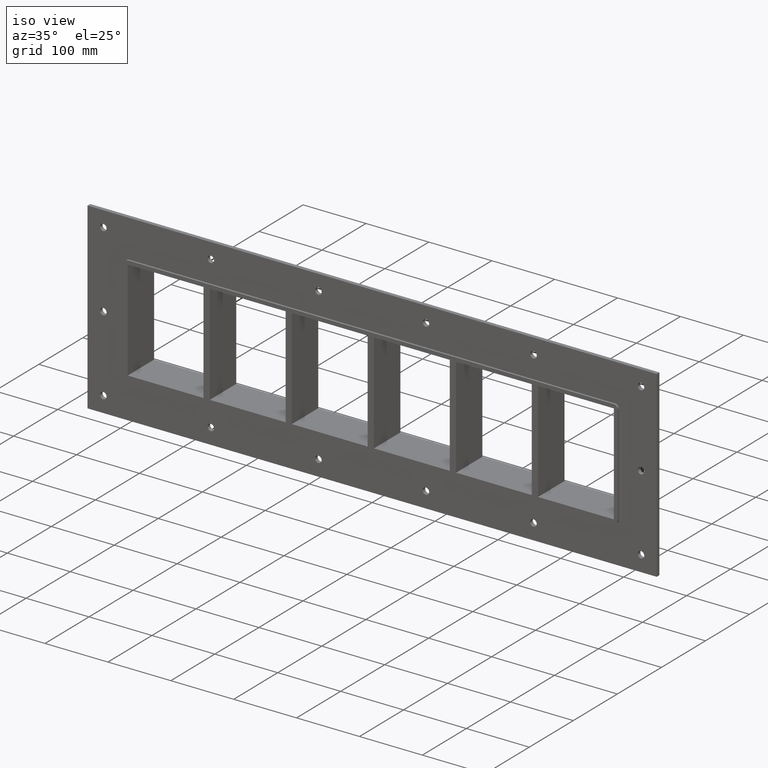
[diagram: clean part render]
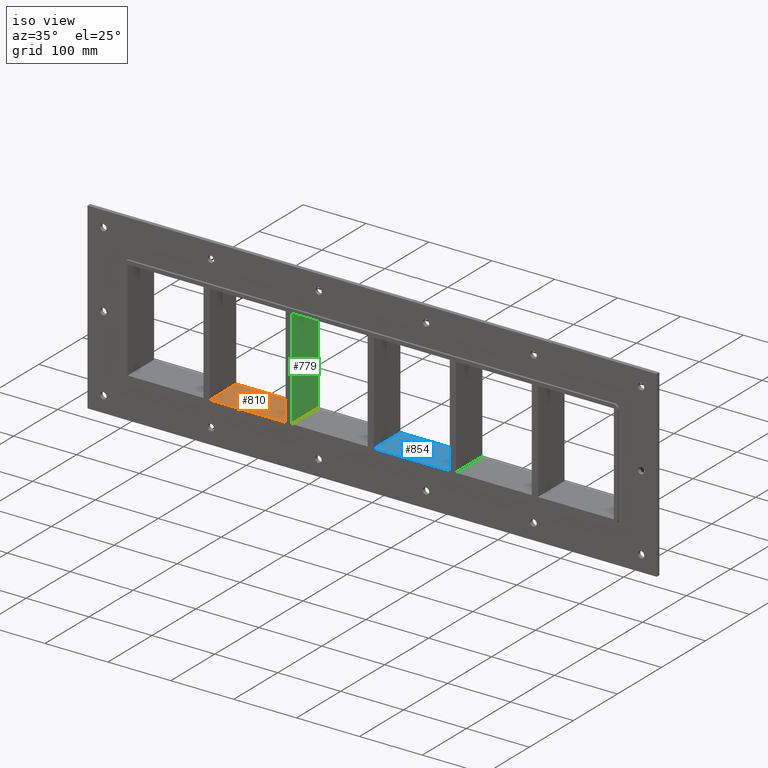
[diagram: same view with three faces highlighted in distinct colors, each labeled with its STEP entity id]
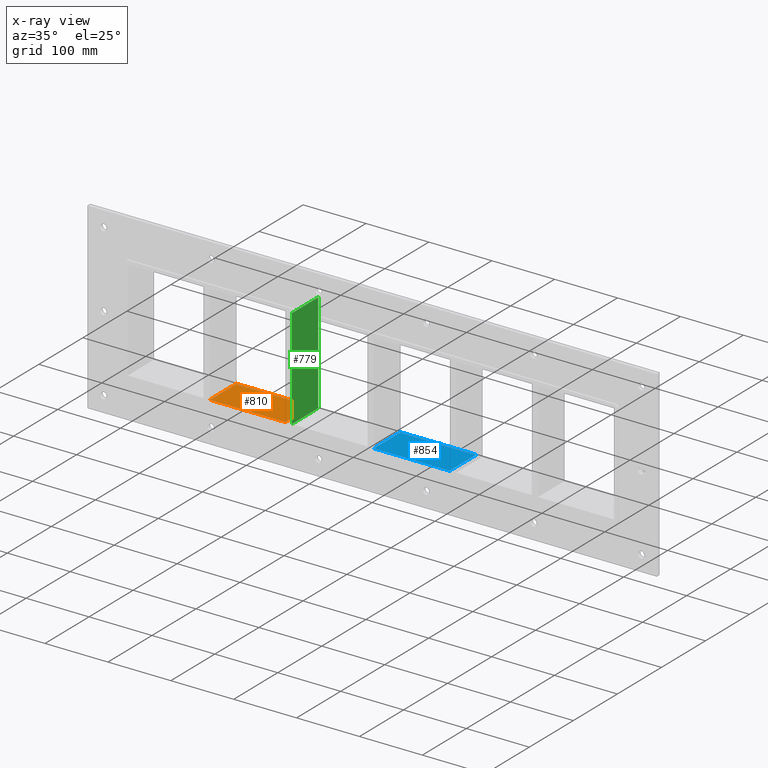
[diagram: x-ray of the same camera — body ghosted, the three highlighted faces saturated]
A machine part, iso view with three faces highlighted in distinct colors.
The next image is the same camera in x-ray (body ghosted, the three faces saturated) — at least one of them is partly hidden behind the body in this view.
Their STEP definitions:

[orange] entity #810 — the highlighted planar face has unit normal (0, 0, -1).
#705=CARTESIAN_POINT('',(-135.50000000000193,-3.0,-79.750000000000014));
#706=VERTEX_POINT('',#705);
#723=CARTESIAN_POINT('',(-135.50000000000193,57.0,-79.750000000000014));
#724=VERTEX_POINT('',#723);
#731=CARTESIAN_POINT('',(-135.50000000000193,-3.0,-79.750000000000014));
#732=DIRECTION('',(0.0,1.0,0.0));
#733=VECTOR('',#732,60.000000000000007);
#734=LINE('',#731,#733);
#735=EDGE_CURVE('',#706,#724,#734,.T.);
#780=CARTESIAN_POINT('',(386.50000000000006,0.0,-79.750000000000014));
#781=DIRECTION('',(0.0,0.0,-1.0));
#782=DIRECTION('',(-1.0,0.0,0.0));
#783=AXIS2_PLACEMENT_3D('',#780,#781,#782);
#784=PLANE('',#783);
#785=ORIENTED_EDGE('',*,*,#735,.T.);
#786=CARTESIAN_POINT('',(-256.00000000000364,57.0,-79.74999999998704));
#787=VERTEX_POINT('',#786);
#788=CARTESIAN_POINT('',(-256.00000000000364,57.0,-79.750000000000014));
#789=DIRECTION('',(1.0,0.0,0.0));
#790=VECTOR('',#789,120.50000000000168);
#791=LINE('',#788,#790);
#792=EDGE_CURVE('',#787,#724,#791,.T.);
#793=ORIENTED_EDGE('',*,*,#792,.F.);
#794=CARTESIAN_POINT('',(-256.00000000000364,-3.0,-79.74999999998704));
#795=VERTEX_POINT('',#794);
#796=CARTESIAN_POINT('',(-256.00000000000364,57.000000000000007,-79.750000000000014));
#797=DIRECTION('',(0.0,-1.0,0.0));
#798=VECTOR('',#797,60.000000000000007);
#799=LINE('',#796,#798);
#800=EDGE_CURVE('',#787,#795,#799,.T.);
#801=ORIENTED_EDGE('',*,*,#800,.T.);
#802=CARTESIAN_POINT('',(-135.50000000000196,-3.0,-79.750000000000014));
#803=DIRECTION('',(-1.0,0.0,0.0));
#804=VECTOR('',#803,120.50000000000168);
#805=LINE('',#802,#804);
#806=EDGE_CURVE('',#706,#795,#805,.T.);
#807=ORIENTED_EDGE('',*,*,#806,.F.);
#808=EDGE_LOOP('',(#785,#793,#801,#807));
#809=FACE_OUTER_BOUND('',#808,.T.);
#810=ADVANCED_FACE('',(#809),#784,.F.);

[blue] entity #854 — the highlighted planar face has unit normal (0, 0, -1).
#545=CARTESIAN_POINT('',(125.49999999999812,-3.0,-79.750000000000014));
#546=VERTEX_POINT('',#545);
#563=CARTESIAN_POINT('',(125.49999999999812,57.0,-79.750000000000014));
#564=VERTEX_POINT('',#563);
#571=CARTESIAN_POINT('',(125.49999999999812,-3.0,-79.750000000000014));
#572=DIRECTION('',(0.0,1.0,0.0));
#573=VECTOR('',#572,60.000000000000007);
#574=LINE('',#571,#573);
#575=EDGE_CURVE('',#546,#564,#574,.T.);
#667=CARTESIAN_POINT('',(4.999999999996376,-3.0,-79.74999999998704));
#668=VERTEX_POINT('',#667);
#675=CARTESIAN_POINT('',(4.999999999996376,57.0,-79.74999999998704));
#676=VERTEX_POINT('',#675);
#677=CARTESIAN_POINT('',(4.999999999996376,57.000000000000007,-79.750000000000014));
#678=DIRECTION('',(0.0,-1.0,0.0));
#679=VECTOR('',#678,60.000000000000007);
#680=LINE('',#677,#679);
#681=EDGE_CURVE('',#676,#668,#680,.T.);
#833=CARTESIAN_POINT('',(386.50000000000006,0.0,-79.750000000000014));
#834=DIRECTION('',(0.0,0.0,-1.0));
#835=DIRECTION('',(-1.0,0.0,0.0));
#836=AXIS2_PLACEMENT_3D('',#833,#834,#835);
#837=PLANE('',#836);
#838=ORIENTED_EDGE('',*,*,#575,.T.);
#839=CARTESIAN_POINT('',(4.99999999999639,57.0,-79.750000000000014));
#840=DIRECTION('',(1.0,0.0,0.0));
#841=VECTOR('',#840,120.50000000000173);
#842=LINE('',#839,#841);
#843=EDGE_CURVE('',#676,#564,#842,.T.);
#844=ORIENTED_EDGE('',*,*,#843,.F.);
#845=ORIENTED_EDGE('',*,*,#681,.T.);
#846=CARTESIAN_POINT('',(125.49999999999812,-3.0,-79.750000000000014));
#847=DIRECTION('',(-1.0,0.0,0.0));
#848=VECTOR('',#847,120.50000000000173);
#849=LINE('',#846,#848);
#850=EDGE_CURVE('',#546,#668,#849,.T.);
#851=ORIENTED_EDGE('',*,*,#850,.F.);
#852=EDGE_LOOP('',(#838,#844,#845,#851));
#853=FACE_OUTER_BOUND('',#852,.T.);
#854=ADVANCED_FACE('',(#853),#837,.F.);

[green] entity #779 — the highlighted planar face has unit normal (1, 0, 0).
#740=CARTESIAN_POINT('',(-125.50000000000364,-3.0,79.750000000000014));
#741=DIRECTION('',(1.0,0.0,0.0));
#742=DIRECTION('',(0.0,0.0,-1.0));
#743=AXIS2_PLACEMENT_3D('',#740,#741,#742);
#744=PLANE('',#743);
#745=CARTESIAN_POINT('',(-125.50000000000364,-3.0,79.750000000000014));
#746=VERTEX_POINT('',#745);
#747=CARTESIAN_POINT('',(-125.50000000000364,-3.0,-79.74999999998704));
#748=VERTEX_POINT('',#747);
#749=CARTESIAN_POINT('',(-125.50000000000364,-3.0,79.750000000000014));
#750=DIRECTION('',(0.0,0.0,-1.0));
#751=VECTOR('',#750,159.49999999998707);
#752=LINE('',#749,#751);
#753=EDGE_CURVE('',#746,#748,#752,.T.);
#754=ORIENTED_EDGE('',*,*,#753,.T.);
#755=CARTESIAN_POINT('',(-125.50000000000364,57.0,-79.74999999998704));
#756=VERTEX_POINT('',#755);
#757=CARTESIAN_POINT('',(-125.50000000000365,57.000000000000007,-79.750000000000014));
#758=DIRECTION('',(0.0,-1.0,0.0));
#759=VECTOR('',#758,60.000000000000007);
#760=LINE('',#757,#759);
#761=EDGE_CURVE('',#756,#748,#760,.T.);
#762=ORIENTED_EDGE('',*,*,#761,.F.);
#763=CARTESIAN_POINT('',(-125.50000000000364,57.0,79.750000000000014));
#764=VERTEX_POINT('',#763);
#765=CARTESIAN_POINT('',(-125.50000000000364,57.0,79.750000000000014));
#766=DIRECTION('',(0.0,0.0,-1.0));
#767=VECTOR('',#766,159.49999999998707);
#768=LINE('',#765,#767);
#769=EDGE_CURVE('',#764,#756,#768,.T.);
#770=ORIENTED_EDGE('',*,*,#769,.F.);
#771=CARTESIAN_POINT('',(-125.50000000000365,-3.0,79.750000000000014));
#772=DIRECTION('',(0.0,1.0,0.0));
#773=VECTOR('',#772,60.000000000000007);
#774=LINE('',#771,#773);
#775=EDGE_CURVE('',#746,#764,#774,.T.);
#776=ORIENTED_EDGE('',*,*,#775,.F.);
#777=EDGE_LOOP('',(#754,#762,#770,#776));
#778=FACE_OUTER_BOUND('',#777,.T.);
#779=ADVANCED_FACE('',(#778),#744,.T.);